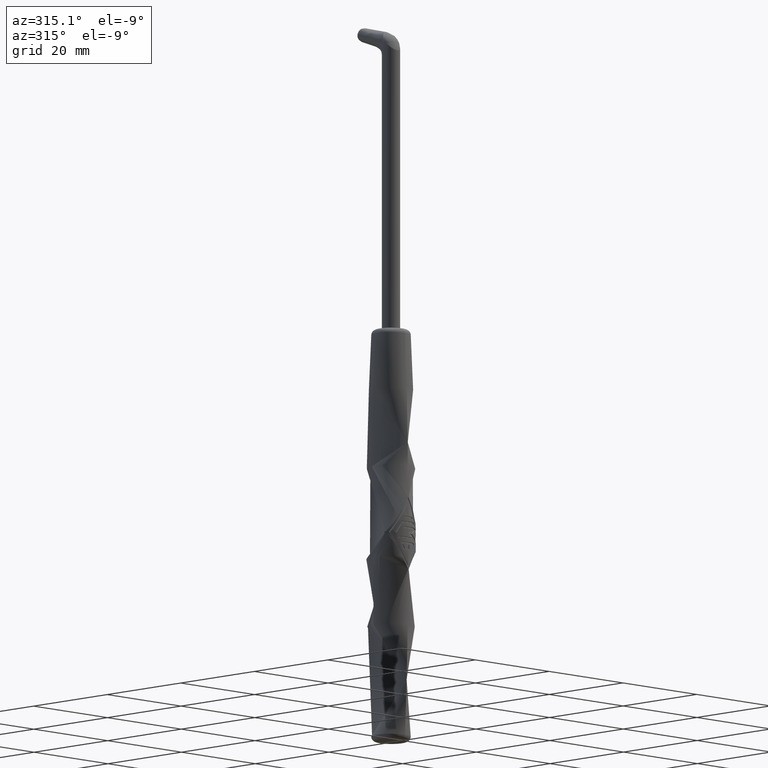
[diagram: clean part render]
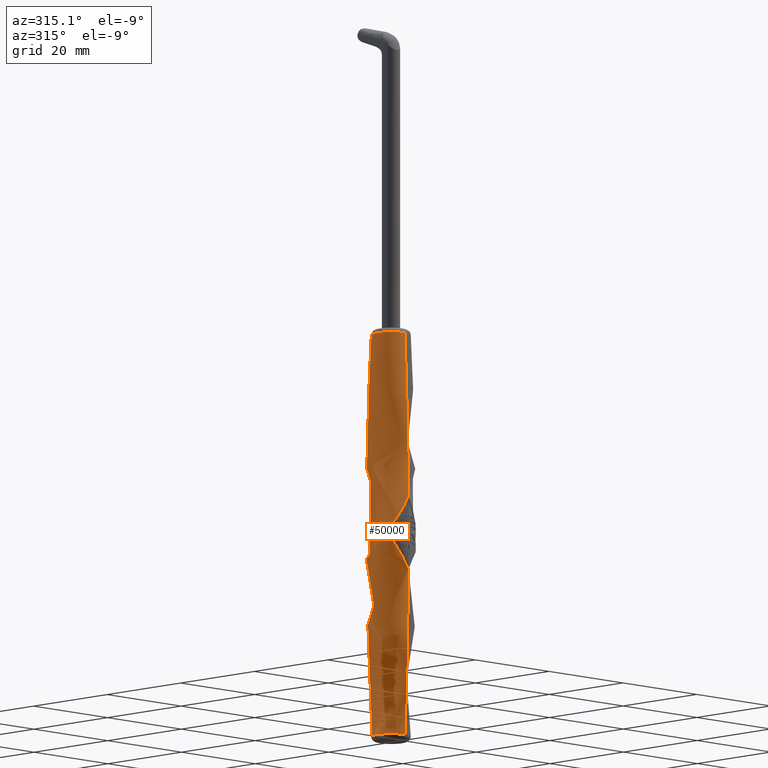
[diagram: same view with one face highlighted and labeled with its STEP entity id]
A machine part, auxiliary view. The second image highlights one B-rep face of the part: STEP entity #50000.
In plain terms, the highlighted toroidal blend (fillet) surface has major radius 795.25 mm and minor (blend) radius 800 mm.
Its self-contained STEP definition (entity closure, byte-faithful):
#770=CARTESIAN_POINT('',(828.038637,74.3702629999999,0.));
#780=DIRECTION('',(0.,0.,-1.));
#790=DIRECTION('',(1.,0.,0.));
#800=AXIS2_PLACEMENT_3D('',#770,#780,#790);
#810=CIRCLE('',#800,800.);
#820=CARTESIAN_POINT('',(28.992211341008,35.3214519862327,0.));
#830=VERTEX_POINT('',#820);
#840=CARTESIAN_POINT('',(28.0692956196094,67.3664889156815,0.));
#850=VERTEX_POINT('',#840);
#860=EDGE_CURVE('',#830,#850,#810,.T.);
#880=CARTESIAN_POINT('',(0.,67.4914889156829,-1.72755401708477E-12));
#890=DIRECTION('',(1.,-1.05090672516673E-13,4.40354167717628E-14));
#900=DIRECTION('',(-1.05090672516673E-13,-1.,0.));
#910=AXIS2_PLACEMENT_3D('',#880,#890,#900);
#920=CYLINDRICAL_SURFACE('',#910,0.124999999998482);
#930=CARTESIAN_POINT('',(32.788637,74.3702629999999,0.));
#940=DIRECTION('',(0.,-1.,0.));
#950=DIRECTION('',(-1.,0.,0.));
#960=AXIS2_PLACEMENT_3D('',#930,#940,#950);
#970=DEGENERATE_TOROIDAL_SURFACE('',#960,795.25,800.,.F.);
#3420=CARTESIAN_POINT('',(0.,81.2489067119184,6.51447798013415E-13));
#3430=DIRECTION('',(1.,-6.27828557378425E-13,1.92019213787672E-15));
#3440=DIRECTION('',(-6.27828557378425E-13,-1.,0.));
#3450=AXIS2_PLACEMENT_3D('',#3420,#3430,#3440);
#3460=CYLINDRICAL_SURFACE('',#3450,0.125138850330428);
#3740=CARTESIAN_POINT('',(28.0692956938341,81.3740455622311,0.));
#3750=VERTEX_POINT('',#3740);
#3780=CARTESIAN_POINT('',(28.9922113410079,113.419074013766,0.));
#3790=VERTEX_POINT('',#3780);
#3800=EDGE_CURVE('',#3750,#3790,#810,.T.);
#3820=CARTESIAN_POINT('',(32.788637,113.419074013767,0.));
#3830=DIRECTION('',(0.,-1.,0.));
#3840=DIRECTION('',(-1.,0.,0.));
#3850=AXIS2_PLACEMENT_3D('',#3820,#3830,#3840);
#3860=CIRCLE('',#3850,3.79642565899203);
#3870=CARTESIAN_POINT('',(36.5850626589921,113.419074013767,0.));
#3880=VERTEX_POINT('',#3870);
#3910=CARTESIAN_POINT('',(-762.461363,74.3702629999999,0.));
#3920=DIRECTION('',(-0.,0.,1.));
#3930=DIRECTION('',(-1.,0.,0.));
#3940=AXIS2_PLACEMENT_3D('',#3910,#3920,#3930);
#3950=CIRCLE('',#3940,800.);
#3960=CARTESIAN_POINT('',(36.585062658992,35.3214519862327,0.));
#3970=VERTEX_POINT('',#3960);
#3980=EDGE_CURVE('',#3970,#3880,#3950,.T.);
#4000=CARTESIAN_POINT('',(32.788637,35.3214519862327,0.));
#4010=DIRECTION('',(0.,-1.,0.));
#4020=DIRECTION('',(-1.,0.,0.));
#4030=AXIS2_PLACEMENT_3D('',#4000,#4010,#4020);
#4040=CIRCLE('',#4030,3.79642565899203);
#46770=EDGE_CURVE('',#3790,#3880,#3860,.T.);
#46990=EDGE_CURVE('',#830,#3970,#4040,.T.);
#47120=CARTESIAN_POINT('',(32.788637,74.3702629999999,0.));
#47130=DIRECTION('',(0.,-1.,0.));
#47140=DIRECTION('',(-1.,0.,0.));
#47150=AXIS2_PLACEMENT_3D('',#47120,#47130,#47140);
#47160=DEGENERATE_TOROIDAL_SURFACE('',#47150,795.25,800.,.F.);
#47170=ORIENTED_EDGE('',*,*,#46990,.F.);
#47180=ORIENTED_EDGE('',*,*,#3980,.F.);
#47190=ORIENTED_EDGE('',*,*,#46770,.T.);
#47200=ORIENTED_EDGE('',*,*,#3800,.T.);
#47210=CARTESIAN_POINT('',(28.0699968167994,81.3110063456079,
-0.108643303315576));
#47220=CARTESIAN_POINT('',(28.0699755521824,81.315750859046,
-0.105931377797592));
#47230=CARTESIAN_POINT('',(28.0699478085483,81.3203427516305,
-0.102892724018393));
#47240=CARTESIAN_POINT('',(28.0699155327902,81.3247212518667,
-0.0995584621798781));
#47250=CARTESIAN_POINT('',(28.0698832574576,81.3290996943836,
-0.0962242442951296));
#47260=CARTESIAN_POINT('',(28.0698464903407,81.3332618745128,
-0.0925964925891485));
#47270=CARTESIAN_POINT('',(28.0698075805486,81.3371563187758,
-0.0887228197720909));
#47280=CARTESIAN_POINT('',(28.0697686469381,81.341053147005,
-0.0848467757039977));
#47290=CARTESIAN_POINT('',(28.0697277228164,81.344670808937,
-0.0807384987576717));
#47300=CARTESIAN_POINT('',(28.0696868441731,81.3480008945921,
-0.0764203822200421));
#47310=CARTESIAN_POINT('',(28.0696458809678,81.351337868897,
-0.0720933331815032));
#47320=CARTESIAN_POINT('',(28.0696046651621,81.3544085179304,
-0.0675232378589143));
#47330=CARTESIAN_POINT('',(28.0695654527532,81.3571686664748,
-0.0627620988635535));
#47340=CARTESIAN_POINT('',(28.0695262408732,81.359928777796,
-0.0580010240767311));
#47350=CARTESIAN_POINT('',(28.0694890773099,81.3623765356147,
-0.0530519205542264));
#47360=CARTESIAN_POINT('',(28.0694559122101,81.364482642099,
-0.047978497483812));
#47370=CARTESIAN_POINT('',(28.0694227305883,81.3665897977932,
-0.0429025469602167));
#47380=CARTESIAN_POINT('',(28.0693936341676,81.3683508270857,
-0.0377166100506401));
#47390=CARTESIAN_POINT('',(28.0693698035846,81.3697643096982,
-0.0324526257277755));
#47400=CARTESIAN_POINT('',(28.0693459292834,81.3711803854045,
-0.0271789844022963));
#47410=CARTESIAN_POINT('',(28.0693272100607,81.3722551486287,
-0.0217927311169823));
#47420=CARTESIAN_POINT('',(28.0693146480767,81.3729715466341,
-0.0163599708002442));
#47430=CARTESIAN_POINT('',(28.0693020860361,81.373687947867,
-0.010927186009092));
#47440=CARTESIAN_POINT('',(28.0692956938341,81.3740455622312,
-0.00545132250889928));
#47450=CARTESIAN_POINT('',(28.0692956938341,81.3740455622312,
5.23848039124982E-15));
#47460=B_SPLINE_CURVE_WITH_KNOTS('',3,(#47210,#47220,#47230,#47240,
#47250,#47260,#47270,#47280,#47290,#47300,#47310,#47320,#47330,#47340,
#47350,#47360,#47370,#47380,#47390,#47400,#47410,#47420,#47430,#47440,
#47450),.UNSPECIFIED.,.F.,.F.,(4,3,3,3,3,3,3,3,4),(0.,0.0164629993231233
,0.0329690123422658,0.0493810566918918,0.0658431962707019,
0.0823494344437682,0.0987610763444086,0.115182091888155,
0.131589042144701),.UNSPECIFIED.);
#47470=SURFACE_CURVE('',#47460,(#3460,#970),.CURVE_3D.);
#47480=CARTESIAN_POINT('',(28.0699968167994,81.3110063456079,
-0.108643303315575));
#47490=VERTEX_POINT('',#47480);
#47500=EDGE_CURVE('',#47490,#3750,#47470,.T.);
#47510=ORIENTED_EDGE('',*,*,#47500,.T.);
#47520=CARTESIAN_POINT('',(28.9184035494211,77.3105100174638,
-2.39529465724973));
#47530=DIRECTION('',(-3.13224385211942E-13,-0.496245838467126,
0.868182047616777));
#47540=DIRECTION('',(0.,0.868182047616777,0.496245838467126));
#47550=AXIS2_PLACEMENT_3D('',#47520,#47530,#47540);
#47560=PLANE('',#47550);
#47570=CARTESIAN_POINT('',(30.2347480362045,74.4943230762273,
-4.00500434172198));
#47580=CARTESIAN_POINT('',(30.1817315063619,74.5534879588096,
-3.97118617323362));
#47590=CARTESIAN_POINT('',(30.130147523629,74.6136587425099,
-3.93679303979978));
#47600=CARTESIAN_POINT('',(30.0799545363009,74.6746670041768,
-3.90192121073185));
#47610=CARTESIAN_POINT('',(30.0297615829094,74.7356752245949,
-3.86704940524146));
#47620=CARTESIAN_POINT('',(29.9809595923739,74.7975212700427,
-3.83169870571446));
#47630=CARTESIAN_POINT('',(29.9335135424321,74.8600384226953,
-3.7959644067597));
#47640=CARTESIAN_POINT('',(29.8860675334864,74.9225555213294,
-3.76023013868157));
#47650=CARTESIAN_POINT('',(29.8399775053099,74.9857439190777,
-3.72411216148188));
#47660=CARTESIAN_POINT('',(29.7952129471146,75.0494369348885,
-3.68770574865374));
#47670=CARTESIAN_POINT('',(29.7504662625645,75.1131045192774,
-3.6513138722207));
#47680=CARTESIAN_POINT('',(29.7069844722846,75.177356575056,
-3.61458791666162));
#47690=CARTESIAN_POINT('',(29.6646176823893,75.2422461185658,
-3.57749757827558));
#47700=CARTESIAN_POINT('',(29.6222573566052,75.3071257615563,
-3.54041289894638));
#47710=CARTESIAN_POINT('',(29.581041263568,75.3726007032172,
-3.50298795171624));
#47720=CARTESIAN_POINT('',(29.5409116427876,75.4386116164162,
-3.46525664748304));
#47730=CARTESIAN_POINT('',(29.5007819686233,75.5046226174289,
-3.4275252930563));
#47740=CARTESIAN_POINT('',(29.461738669759,75.5711699704416,
-3.38948736416322));
#47750=CARTESIAN_POINT('',(29.4237309453106,75.6382003572667,
-3.35117333704863));
#47760=CARTESIAN_POINT('',(29.3857231910961,75.7052307965874,
-3.31285927992801));
#47770=CARTESIAN_POINT('',(29.3487509557394,75.7727445662685,
-3.27426895508143));
#47780=CARTESIAN_POINT('',(29.3127696310588,75.8406925790573,
-3.23543042038573));
#47790=CARTESIAN_POINT('',(29.2767882926892,75.9086406176969,
-3.19659187091396));
#47800=CARTESIAN_POINT('',(29.2417978377676,75.9770231287068,
-3.15750498054834));
#47810=CARTESIAN_POINT('',(29.2077590733109,76.0457938833665,
-3.11819617325176));
#47820=CARTESIAN_POINT('',(29.1737203057176,76.1145646443633,
-3.07888736233295));
#47830=CARTESIAN_POINT('',(29.140633220359,76.1837238246041,
-3.03935653411495));
#47840=CARTESIAN_POINT('',(29.1084632848779,76.2532270115715,
-2.9996290744336));
#47850=CARTESIAN_POINT('',(29.0762933528282,76.3227301911253,
-2.95990161898981));
#47860=CARTESIAN_POINT('',(29.0450405748059,76.3925775104032,
-2.91997745606236));
#47870=CARTESIAN_POINT('',(29.0146743681759,76.4627255958218,
-2.87988137764085));
#47880=CARTESIAN_POINT('',(28.953942148753,76.6030213188815,
-2.79968947674376));
#47890=CARTESIAN_POINT('',(28.896753168879,76.7445212421731,
-2.71880926473106));
#47900=CARTESIAN_POINT('',(28.8429006375152,76.8868814044446,
-2.63743734707323));
#47910=CARTESIAN_POINT('',(28.7890482197473,77.0292412664234,
-2.55606560106023));
#47920=CARTESIAN_POINT('',(28.7385328343935,77.1724630653086,
-2.47420117887742));
#47930=CARTESIAN_POINT('',(28.6911822795215,77.3162004478475,
-2.39204205325066));
#47940=CARTESIAN_POINT('',(28.6675070199887,77.3880690847699,
-2.35096252150161));
#47950=CARTESIAN_POINT('',(28.6446233819162,77.4600665963222,
-2.30980932605967));
#47960=CARTESIAN_POINT('',(28.622511905582,77.5321491010734,
-2.26860754918891));
#47970=CARTESIAN_POINT('',(28.6004032071077,77.6042225501155,
-2.22741094848833));
#47980=CARTESIAN_POINT('',(28.5790619047186,77.6763915007066,
-2.18615975987455));
#47990=CARTESIAN_POINT('',(28.558419050045,77.7488051396771,
-2.14476870936157));
#48000=CARTESIAN_POINT('',(28.5171409262276,77.8936058081292,
-2.0620018181043));
#48010=CARTESIAN_POINT('',(28.4787245046304,78.0391534259187,
-1.97880797664367));
#48020=CARTESIAN_POINT('',(28.4430462282607,78.1853232828176,
-1.89525846834119));
#48030=CARTESIAN_POINT('',(28.4073678727545,78.3314934639297,
-1.81170877472108));
#48040=CARTESIAN_POINT('',(28.3744277349441,78.4782870957211,
-1.72780272173106));
#48050=CARTESIAN_POINT('',(28.3441260815687,78.6255923884982,
-1.64360420746152));
#48060=CARTESIAN_POINT('',(28.3138243859516,78.7728978866247,
-1.55940557581595));
#48070=CARTESIAN_POINT('',(28.2861612648176,78.9207159788888,
-1.47491394950599));
#48080=CARTESIAN_POINT('',(28.2610571094843,79.0689432621971,
-1.39018843290381));
#48090=CARTESIAN_POINT('',(28.2359529346827,79.2171706604567,
-1.30546285059649));
#48100=CARTESIAN_POINT('',(28.2134078192358,79.3658079803145,
-1.22050296042021));
#48110=CARTESIAN_POINT('',(28.1933592603469,79.5147568217098,
-1.13536500704994));
#48120=CARTESIAN_POINT('',(28.173310695295,79.6637057088925,
-1.05022702750797));
#48130=CARTESIAN_POINT('',(28.1557587760128,79.8129667002011,
-0.964910651772865));
#48140=CARTESIAN_POINT('',(28.1406556505752,79.9624438545527,
-0.879470718988598));
#48150=CARTESIAN_POINT('',(28.1255525259205,80.1119210011556,
-0.794030790633431));
#48160=CARTESIAN_POINT('',(28.1128982757839,80.2616147856809,
-0.708467033794266));
#48170=CARTESIAN_POINT('',(28.1026577171228,80.4114297902227,
-0.622833988573087));
#48180=CARTESIAN_POINT('',(28.0924171618826,80.5612447447175,
-0.537200971958331));
#48190=CARTESIAN_POINT('',(28.0845903682239,80.7111813167394,
-0.451498439748593));
#48200=CARTESIAN_POINT('',(28.0791532423399,80.8611431092125,
-0.365781491732775));
#48210=CARTESIAN_POINT('',(28.0737161195217,81.0111048171257,
-0.280064592050697));
#48220=CARTESIAN_POINT('',(28.0706687232638,81.1610920892089,
-0.194333080095878));
#48230=CARTESIAN_POINT('',(28.0699968167994,81.3110063456079,
-0.108643303315589));
#48240=B_SPLINE_CURVE_WITH_KNOTS('',3,(#47570,#47580,#47590,#47600,
#47610,#47620,#47630,#47640,#47650,#47660,#47670,#47680,#47690,#47700,
#47710,#47720,#47730,#47740,#47750,#47760,#47770,#47780,#47790,#47800,
#47810,#47820,#47830,#47840,#47850,#47860,#47870,#47880,#47890,#47900,
#47910,#47920,#47930,#47940,#47950,#47960,#47970,#47980,#47990,#48000,
#48010,#48020,#48030,#48040,#48050,#48060,#48070,#48080,#48090,#48100,
#48110,#48120,#48130,#48140,#48150,#48160,#48170,#48180,#48190,#48200,
#48210,#48220,#48230),.UNSPECIFIED.,.F.,.F.,(4,3,3,3,3,3,3,3,3,3,3,3,3,3
,3,3,3,3,3,3,3,3,4),(0.,0.259076156902078,0.518001413298971,
0.776314199281715,1.03396139102131,1.29177066383997,1.54981404996918,
1.80810816219253,2.06664467885502,2.32539062325524,2.58428902338518,
3.10220139507484,3.61948820681377,3.87753350075328,4.13518737063619,
4.65107462916146,5.16777073479483,5.68516911164216,6.20313375949153,
6.72149835258111,7.2400660656565,7.75861002928075,8.27687428618049),
.UNSPECIFIED.);
#48250=SURFACE_CURVE('',#48240,(#970,#47560),.CURVE_3D.);
#48260=CARTESIAN_POINT('',(30.2347480376735,74.494323074588,
-4.005004342659));
#48270=VERTEX_POINT('',#48260);
#48280=EDGE_CURVE('',#48270,#47490,#48250,.T.);
#48290=ORIENTED_EDGE('',*,*,#48280,.T.);
#48300=CARTESIAN_POINT('',(0.,74.3702616150394,-3.7879588308619));
#48310=DIRECTION('',(1.,-3.29616817659608E-13,1.72375611279217E-13));
#48320=DIRECTION('',(-3.29616817659608E-13,-1.,0.));
#48330=AXIS2_PLACEMENT_3D('',#48300,#48310,#48320);
#48340=CYLINDRICAL_SURFACE('',#48330,0.249999999882647);
#48350=CARTESIAN_POINT('',(30.2347461676101,74.2461980676656,
-4.00500314927322));
#48360=CARTESIAN_POINT('',(30.2383863773417,74.2502603477941,
-4.00732516759097));
#48370=CARTESIAN_POINT('',(30.2419106207458,74.254444155934,
-4.00956625192711));
#48380=CARTESIAN_POINT('',(30.2453214867326,74.2587862695206,
-4.01172935457469));
#48390=CARTESIAN_POINT('',(30.2487338235832,74.2631302555518,
-4.01389339001452));
#48400=CARTESIAN_POINT('',(30.2520329746824,74.2676351016433,
-4.01597951205057));
#48410=CARTESIAN_POINT('',(30.2551784462338,74.2722930102537,
-4.01796350998258));
#48420=CARTESIAN_POINT('',(30.2614700879176,74.2816098619543,
-4.02193194647472));
#48430=CARTESIAN_POINT('',(30.2671425613802,74.2915365866613,
-4.02548891665252));
#48440=CARTESIAN_POINT('',(30.2718923745735,74.3019941230172,
-4.02845737446081));
#48450=CARTESIAN_POINT('',(30.2742686634515,74.307225934527,
-4.02994246723977));
#48460=CARTESIAN_POINT('',(30.2764073245423,74.3125683036299,
-4.03127615488607));
#48470=CARTESIAN_POINT('',(30.2782982695861,74.3180866065644,
-4.0324537560249));
#48480=CARTESIAN_POINT('',(30.2801883630975,74.3236024244909,
-4.03363082686517));
#48490=CARTESIAN_POINT('',(30.2818188802581,74.3292716657963,
-4.03464441510499));
#48500=CARTESIAN_POINT('',(30.2831406223991,74.3350405088238,
-4.03546534313265));
#48510=CARTESIAN_POINT('',(30.2844623854427,74.3408094430822,
-4.0362862841428));
#48520=CARTESIAN_POINT('',(30.2854739928548,74.3466733690791,
-4.03691373357163));
#48530=CARTESIAN_POINT('',(30.2861486764481,74.3525703154903,
-4.03733208094965));
#48540=CARTESIAN_POINT('',(30.2868236998374,74.3584702318258,
-4.03775063902318));
#48550=CARTESIAN_POINT('',(30.2871612563081,74.3643851481743,
-4.03795977028212));
#48560=CARTESIAN_POINT('',(30.2871597350871,74.3703014505731,
-4.03795882756562));
#48570=CARTESIAN_POINT('',(30.2871582130946,74.3762207534366,
-4.03795788437101));
#48580=CARTESIAN_POINT('',(30.2868166922036,74.3821321603875,
-4.03774629530785));
#48590=CARTESIAN_POINT('',(30.2861424905485,74.3880068975703,
-4.03732824535825));
#48600=CARTESIAN_POINT('',(30.2854679290004,74.3938847707242,
-4.03690997225101));
#48610=CARTESIAN_POINT('',(30.2844585866766,74.3997318855513,
-4.03628392581566));
#48620=CARTESIAN_POINT('',(30.2831385246225,74.40549187492,
-4.03546404035613));
#48630=CARTESIAN_POINT('',(30.2818185028289,74.4112516886152,
-4.03464417990224));
#48640=CARTESIAN_POINT('',(30.2801889369207,74.4169200034335,
-4.03363118618468));
#48650=CARTESIAN_POINT('',(30.2782955381407,74.4224445929831,
-4.03245205520699));
#48660=CARTESIAN_POINT('',(30.2764005056096,74.4279739495179,
-4.03127190679624));
#48670=CARTESIAN_POINT('',(30.2742517094431,74.4333365394732,
-4.02993188062792));
#48680=CARTESIAN_POINT('',(30.2718816292113,74.4385527594771,
-4.02845065926536));
#48690=CARTESIAN_POINT('',(30.2671364727847,74.4489961949108,
-4.02548509422954));
#48700=CARTESIAN_POINT('',(30.2614738187326,74.4589066342525,
-4.02193428366327));
#48710=CARTESIAN_POINT('',(30.2551859378635,74.4682191243142,
-4.01796823569969));
#48720=CARTESIAN_POINT('',(30.2520422511336,74.4728749936028,
-4.01598537174081));
#48730=CARTESIAN_POINT('',(30.2487430566645,74.4773809003131,
-4.01389923949927));
#48740=CARTESIAN_POINT('',(30.2453268404533,74.4817301439568,
-4.01173275024879));
#48750=CARTESIAN_POINT('',(30.2419088589585,74.4860816350133,
-4.00956514149424));
#48760=CARTESIAN_POINT('',(30.2383857965347,74.4902634430666,
-4.0073247952113));
#48770=CARTESIAN_POINT('',(30.2347480376736,74.494323074588,
-4.00500434265903));
#48780=B_SPLINE_CURVE_WITH_KNOTS('',3,(#48350,#48360,#48370,#48380,
#48390,#48400,#48410,#48420,#48430,#48440,#48450,#48460,#48470,#48480,
#48490,#48500,#48510,#48520,#48530,#48540,#48550,#48560,#48570,#48580,
#48590,#48600,#48610,#48620,#48630,#48640,#48650,#48660,#48670,#48680,
#48690,#48700,#48710,#48720,#48730,#48740,#48750,#48760,#48770),
.UNSPECIFIED.,.F.,.F.,(4,3,3,3,3,3,3,3,3,3,3,3,3,3,4),(0.,
0.0177667922117966,0.0356163765295216,0.0713256313349112,
0.0891099549803171,0.107007959368039,0.12490420028475,0.142688520057289,
0.160447640347611,0.17829889087639,0.196196008873578,0.213998570635431,
0.249666795102647,0.267521267747847,0.285294322650548),.UNSPECIFIED.);
#48790=SURFACE_CURVE('',#48780,(#48340,#970),.CURVE_3D.);
#48800=CARTESIAN_POINT('',(30.23474616761,74.2461980676658,
-4.0050031492732));
#48810=VERTEX_POINT('',#48800);
#48820=EDGE_CURVE('',#48810,#48270,#48790,.T.);
#48830=ORIENTED_EDGE('',*,*,#48820,.T.);
#48840=CARTESIAN_POINT('',(28.9242635757057,71.4171275985864,
-2.38789323966417));
#48850=DIRECTION('',(1.39211384378666E-14,0.496254189687407,
0.868177274073501));
#48860=DIRECTION('',(0.,0.868177274073501,-0.496254189687407));
#48870=AXIS2_PLACEMENT_3D('',#48840,#48850,#48860);
#48880=PLANE('',#48870);
#48890=CARTESIAN_POINT('',(28.06999457162,67.4294571419697,
-0.108522159258316));
#48900=CARTESIAN_POINT('',(28.0706650301381,67.5795325402384,
-0.194305958701024));
#48910=CARTESIAN_POINT('',(28.0737154714801,67.7295065337542,
-0.280031794712812));
#48920=CARTESIAN_POINT('',(28.0791431760185,67.8792758650906,
-0.365640644865759));
#48930=CARTESIAN_POINT('',(28.0845708751474,68.0290450471583,
-0.451249409696046));
#48940=CARTESIAN_POINT('',(28.0923758712401,68.1786098571025,
-0.536741354464846));
#48950=CARTESIAN_POINT('',(28.1025636361141,68.3278626580625,
-0.622054953439276));
#48960=CARTESIAN_POINT('',(28.1076575165417,68.4024890291048,
-0.66471173609972));
#48970=CARTESIAN_POINT('',(28.1133472143236,68.4770373397497,
-0.707323899071992));
#48980=CARTESIAN_POINT('',(28.119634153718,68.5514936745361,
-0.749883488213417));
#48990=CARTESIAN_POINT('',(28.1259197186129,68.6259337311011,
-0.792433772647441));
#49000=CARTESIAN_POINT('',(28.1328101344071,68.7003763710014,
-0.834985533727918));
#49010=CARTESIAN_POINT('',(28.1403141330054,68.774825754501,
-0.877541149481338));
#49020=CARTESIAN_POINT('',(28.1553217660914,68.9237209090528,
-0.962650316096347));
#49030=CARTESIAN_POINT('',(28.1727803559291,69.0726112622581,
-1.04775673823882));
#49040=CARTESIAN_POINT('',(28.1927502803251,69.2213538259691,
-1.13277868321567));
#49050=CARTESIAN_POINT('',(28.2127202238628,69.3700965322533,
-1.21780070968802));
#49060=CARTESIAN_POINT('',(28.2352013244308,69.5186918048022,
-1.30273846234389));
#49070=CARTESIAN_POINT('',(28.2602643774921,69.666999976754,
-1.38751210695985));
#49080=CARTESIAN_POINT('',(28.2853274493374,69.8153082598577,
-1.47228581511077));
#49090=CARTESIAN_POINT('',(28.3129722801804,69.9633299733013,
-1.55689571869202));
#49100=CARTESIAN_POINT('',(28.3432837355898,70.1109273100398,
-1.64126304657603));
#49110=CARTESIAN_POINT('',(28.3735952022822,70.2585247017194,
-1.72563040586461));
#49120=CARTESIAN_POINT('',(28.4065730915933,70.4056984895169,
-1.8097556312095));
#49130=CARTESIAN_POINT('',(28.4423207479503,70.5523102779512,
-1.89355961507416));
#49140=CARTESIAN_POINT('',(28.4780683952478,70.6989220292296,
-1.97736357770025));
#49150=CARTESIAN_POINT('',(28.5165856150657,70.8449728911357,
-2.06084693333839));
#49160=CARTESIAN_POINT('',(28.557999552069,70.9903200073071,
-2.14392802462357));
#49170=CARTESIAN_POINT('',(28.5994134376425,71.1356669429791,
-2.22700901273449));
#49180=CARTESIAN_POINT('',(28.6437238840638,71.2803117171401,
-2.30968864202817));
#49190=CARTESIAN_POINT('',(28.6910882429175,71.4241011009123,
-2.39187932618962));
#49200=CARTESIAN_POINT('',(28.7147704325022,71.4959958236354,
-2.43297468589691));
#49210=CARTESIAN_POINT('',(28.7392166670453,71.5676766618052,
-2.47394778820304));
#49220=CARTESIAN_POINT('',(28.7644500942258,71.6391229635985,
-2.51478682840993));
#49230=CARTESIAN_POINT('',(28.7896835114024,71.7105692370665,
-2.55562585242593));
#49240=CARTESIAN_POINT('',(28.8157041216418,71.7817810577242,
-2.59633086212331));
#49250=CARTESIAN_POINT('',(28.8425377216819,71.8527362507366,
-2.6368891822545));
#49260=CARTESIAN_POINT('',(28.8693733715135,71.9236968639443,
-2.67745060059466));
#49270=CARTESIAN_POINT('',(28.8970127349437,71.99437757657,
-2.71785202645343));
#49280=CARTESIAN_POINT('',(28.9255112341762,72.0648204275972,
-2.75811748951004));
#49290=CARTESIAN_POINT('',(28.9540171609444,72.135281638075,
-2.79839344691442));
#49300=CARTESIAN_POINT('',(28.9834108320205,72.2055725111735,
-2.83857203867168));
#49310=CARTESIAN_POINT('',(29.0137180217038,72.2756319402525,
-2.87861833594973));
#49320=CARTESIAN_POINT('',(29.0743324125292,72.4157508248994,
-2.95871094564691));
#49330=CARTESIAN_POINT('',(29.1385980614114,72.5549446473787,
-3.03827478548793));
#49340=CARTESIAN_POINT('',(29.2067508903133,72.6927266360376,
-3.11703161451041));
#49350=CARTESIAN_POINT('',(29.2408274507561,72.7616179255133,
-3.15641019772867));
#49360=CARTESIAN_POINT('',(29.2758766911124,72.8301566471431,
-3.19558725151746));
#49370=CARTESIAN_POINT('',(29.3119336205116,72.8982817180804,
-3.2345278606361));
#49380=CARTESIAN_POINT('',(29.3479905589923,72.9664068061763,
-3.27346847956268));
#49390=CARTESIAN_POINT('',(29.3850551847882,73.0341184189166,
-3.31217275404245));
#49400=CARTESIAN_POINT('',(29.4231672936455,73.1013542990436,
-3.35060509753585));
#49410=CARTESIAN_POINT('',(29.4612794024511,73.1685901790791,
-3.38903744097695));
#49420=CARTESIAN_POINT('',(29.5004390158711,73.2353505683444,
-3.42719799167026));
#49430=CARTESIAN_POINT('',(29.5406917039421,73.3015709534569,
-3.46504987346459));
#49440=CARTESIAN_POINT('',(29.580944375949,73.3677913121421,
-3.502901740153));
#49450=CARTESIAN_POINT('',(29.6222901809916,73.4334719940956,
-3.54044512509791));
#49460=CARTESIAN_POINT('',(29.6647814913847,73.4985447201945,
-3.57764099963336));
#49470=CARTESIAN_POINT('',(29.7072727597655,73.5636173819542,
-3.6148368373922));
#49480=CARTESIAN_POINT('',(29.750909648242,73.6280825244179,
-3.65168541425443));
#49490=CARTESIAN_POINT('',(29.7957523430118,73.6918660513197,
-3.68814437650018));
#49500=CARTESIAN_POINT('',(29.8405949558344,73.7556494616612,
-3.72460327211949));
#49510=CARTESIAN_POINT('',(29.886643573892,73.8187518301298,
-3.7606728810456));
#49520=CARTESIAN_POINT('',(29.933967101221,73.881090521905,
-3.79630596877657));
#49530=CARTESIAN_POINT('',(29.9576326254515,73.9122648215392,
-3.81412534422675));
#49540=CARTESIAN_POINT('',(29.9815986358561,73.9432246669197,
-3.83182213662276));
#49550=CARTESIAN_POINT('',(30.0059346466091,73.9740344169665,
-3.84943313382404));
#49560=CARTESIAN_POINT('',(30.0302697987589,74.0048430800088,
-3.86704350968849));
#49570=CARTESIAN_POINT('',(30.0549642905467,74.0354870640857,
-3.88455975428347));
#49580=CARTESIAN_POINT('',(30.0800214835985,74.0659416227512,
-3.90196772243031));
#49590=CARTESIAN_POINT('',(30.130135879824,74.1268507523847,
-3.93678366575601));
#49600=CARTESIAN_POINT('',(30.1817008069393,74.1870022711451,
-3.97116655516673));
#49610=CARTESIAN_POINT('',(30.2347461676099,74.2461980676658,
-4.00500314927317));
#49620=B_SPLINE_CURVE_WITH_KNOTS('',3,(#48890,#48900,#48910,#48920,
#48930,#48940,#48950,#48960,#48970,#48980,#48990,#49000,#49010,#49020,
#49030,#49040,#49050,#49060,#49070,#49080,#49090,#49100,#49110,#49120,
#49130,#49140,#49150,#49160,#49170,#49180,#49190,#49200,#49210,#49220,
#49230,#49240,#49250,#49260,#49270,#49280,#49290,#49300,#49310,#49320,
#49330,#49340,#49350,#49360,#49370,#49380,#49390,#49400,#49410,#49420,
#49430,#49440,#49450,#49460,#49470,#49480,#49490,#49500,#49510,#49520,
#49530,#49540,#49550,#49560,#49570,#49580,#49590,#49600,#49610),
.UNSPECIFIED.,.F.,.F.,(4,3,3,3,3,3,3,3,3,3,3,3,3,3,3,3,3,3,3,3,3,3,3,3,4
),(0.,0.51821569966295,1.03546233379805,1.29361626960641,
1.55169079882599,2.0687028692724,2.58645511440457,3.10450375611442,
3.6224843952965,4.1401175727505,4.65721275496785,4.91552384534072,
5.17367003841035,5.43166799096914,5.6900184416177,6.20782011526612,
6.46690541461286,6.72592140205337,6.98476645579859,7.24337574774132,
7.50172298004826,7.75982148571454,7.88882094079625,8.01803467049593,
8.27698980043123),.UNSPECIFIED.);
#49630=SURFACE_CURVE('',#49620,(#970,#48880),.CURVE_3D.);
#49640=CARTESIAN_POINT('',(28.06999457162,67.4294571419697,
-0.108522159258324));
#49650=VERTEX_POINT('',#49640);
#49660=EDGE_CURVE('',#49650,#48810,#49630,.T.);
#49670=ORIENTED_EDGE('',*,*,#49660,.T.);
#49680=CARTESIAN_POINT('',(28.0692956196094,67.3664889156815,
-6.45012004021367E-18));
#49690=CARTESIAN_POINT('',(28.0692956196094,67.3664889156814,
-0.00548853940245598));
#49700=CARTESIAN_POINT('',(28.0693020672921,67.3668503082937,
-0.0109473510913887));
#49710=CARTESIAN_POINT('',(28.0693145257208,67.3675619862727,
-0.0163436889149309));
#49720=CARTESIAN_POINT('',(28.0693270109052,67.3682751926469,
-0.0217516158793902));
#49730=CARTESIAN_POINT('',(28.0693456651235,67.3693477421295,
-0.027142741337332));
#49740=CARTESIAN_POINT('',(28.0693696714054,67.3707742066195,
-0.0324493299792486));
#49750=CARTESIAN_POINT('',(28.0693936773315,67.3722006499601,
-0.0377558399428205));
#49760=CARTESIAN_POINT('',(28.0694230113762,67.3739801887557,
-0.0429743812228013));
#49770=CARTESIAN_POINT('',(28.0694561345913,67.3760886106662,
-0.0480392506435599));
#49780=CARTESIAN_POINT('',(28.0694892717425,67.378197919665,
-0.0531062510351858));
#49790=CARTESIAN_POINT('',(28.0695260931758,67.3806300160531,
-0.0580079663194826));
#49800=CARTESIAN_POINT('',(28.0695648084466,67.3833606144548,
-0.0627157912636838));
#49810=CARTESIAN_POINT('',(28.0696036069184,67.3860970810493,
-0.0674337335596027));
#49820=CARTESIAN_POINT('',(28.0696446631975,67.3891588466527,
-0.071998256632478));
#49830=CARTESIAN_POINT('',(28.0696857759821,67.3925149767763,
-0.0763489320001919));
#49840=CARTESIAN_POINT('',(28.0697268881422,67.3958710559196,
-0.0806995412803453));
#49850=CARTESIAN_POINT('',(28.0697680098963,67.3995194296742,
-0.0848334525659295));
#49860=CARTESIAN_POINT('',(28.0698067639645,67.4034125753489,
-0.0886992574580867));
#49870=CARTESIAN_POINT('',(28.0698455327878,67.4073072032938,
-0.0925665342106419));
#49880=CARTESIAN_POINT('',(28.0698818371547,67.4114372760709,
-0.096157942854113));
#49890=CARTESIAN_POINT('',(28.0699136688097,67.4157671010067,
-0.0994545463128393));
#49900=CARTESIAN_POINT('',(28.069945568558,67.4201061881726,
-0.10275820176564));
#49910=CARTESIAN_POINT('',(28.0699732601,67.4246867724748,
-0.105795393747527));
#49920=CARTESIAN_POINT('',(28.0699945716201,67.4294571419697,
-0.108522159258365));
#49930=B_SPLINE_CURVE_WITH_KNOTS('',3,(#49680,#49690,#49700,#49710,
#49720,#49730,#49740,#49750,#49760,#49770,#49780,#49790,#49800,#49810,
#49820,#49830,#49840,#49850,#49860,#49870,#49880,#49890,#49900,#49910,
#49920),.UNSPECIFIED.,.F.,.F.,(4,3,3,3,3,3,3,3,4),(0.,0.0163906323968547
,0.0328254135867991,0.0493084195845362,0.0656998646554812,
0.0821336178112373,0.0986168294540076,0.115009109210578,
0.131441823961235),.UNSPECIFIED.);
#49940=SURFACE_CURVE('',#49930,(#920,#970),.CURVE_3D.);
#49950=EDGE_CURVE('',#850,#49650,#49940,.T.);
#49960=ORIENTED_EDGE('',*,*,#49950,.T.);
#49970=ORIENTED_EDGE('',*,*,#860,.T.);
#49980=EDGE_LOOP('',(#49970,#49960,#49670,#48830,#48290,#47510,#47200,
#47190,#47180,#47170));
#49990=FACE_OUTER_BOUND('',#49980,.T.);
#50000=ADVANCED_FACE('',(#49990),#47160,.F.);